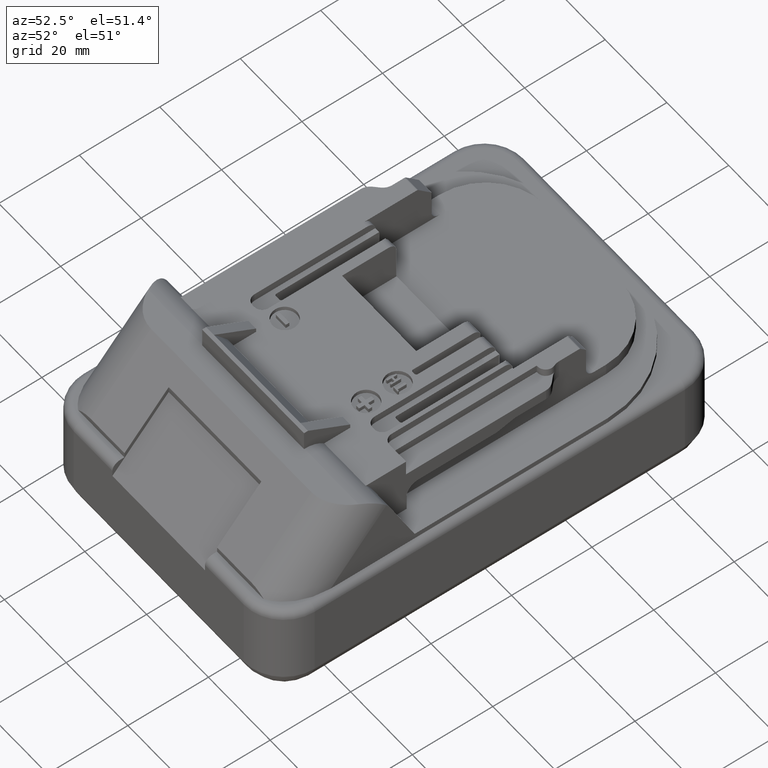
[diagram: clean part render]
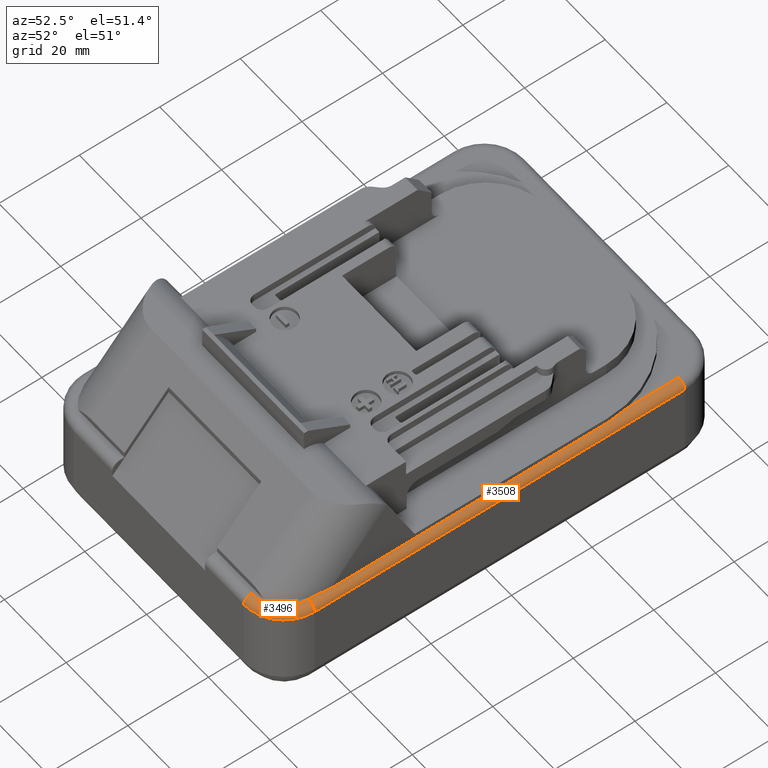
[diagram: same view with one multi-face feature highlighted, each face labeled with its STEP entity id]
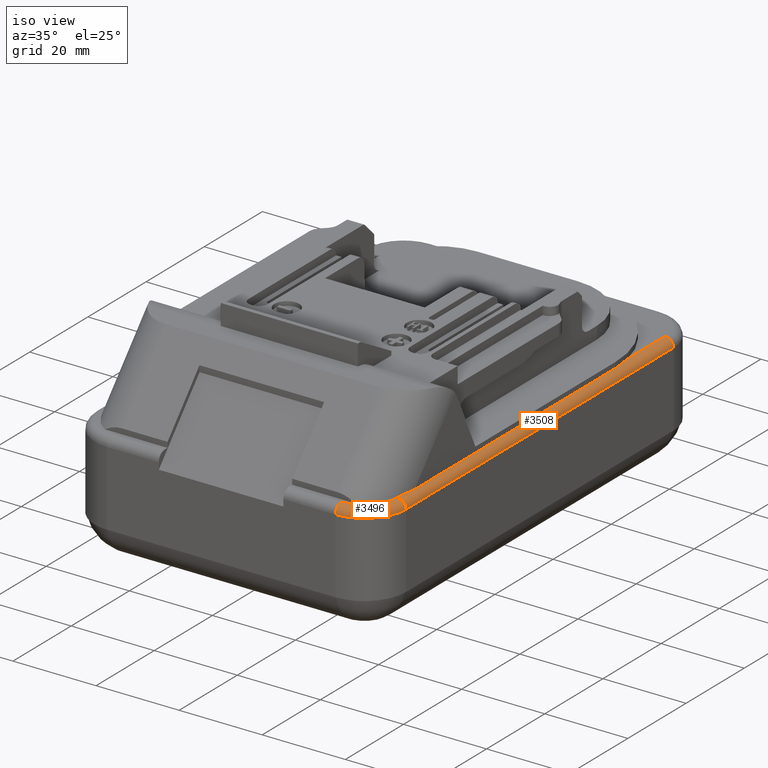
[diagram: same view with one multi-face feature highlighted, each face labeled with its STEP entity id]
A machine part, auxiliary view. The highlighted faces form ONE feature: a constant-radius fillet chain: 2 tangent blend faces with common blend radius 2 mm. The faces share edges in the B-rep.
A second angle (iso view) of the same feature is appended — it is thin or edge-on in the first view.
Their STEP definitions:
[1] entity #3508 (Cylinder):
#20=B_SPLINE_CURVE_WITH_KNOTS('',3,(#5212,#5213,#5214,#5215,#5216,#5217),
 .UNSPECIFIED.,.F.,.F.,(4,2,4),(1.13779040375782,1.49024378622264,1.60652275926252),
 .UNSPECIFIED.);
#21=B_SPLINE_CURVE_WITH_KNOTS('',3,(#5220,#5221,#5222,#5223,#5224,#5225),
 .UNSPECIFIED.,.F.,.F.,(4,2,4),(0.682096894929315,0.847989595912404,1.07007892641866),
 .UNSPECIFIED.);
#189=LINE('',#5089,#593);
#214=LINE('',#5188,#618);
#225=LINE('',#5210,#629);
#226=LINE('',#5219,#630);
#593=VECTOR('',#4064,1.);
#618=VECTOR('',#4173,1.);
#629=VECTOR('',#4192,1.);
#630=VECTOR('',#4193,1.);
#991=CYLINDRICAL_SURFACE('',#3752,2.);
#1065=FACE_OUTER_BOUND('',#1258,.T.);
#1258=EDGE_LOOP('',(#2567,#2568,#2569,#2570,#2571,#2572,#2573,#2574));
#1446=CIRCLE('',#3724,2.);
#1449=CIRCLE('',#3728,2.);
#1550=VERTEX_POINT('',#5064);
#1560=VERTEX_POINT('',#5087);
#1573=VERTEX_POINT('',#5132);
#1575=VERTEX_POINT('',#5138);
#1592=VERTEX_POINT('',#5186);
#1599=VERTEX_POINT('',#5209);
#1600=VERTEX_POINT('',#5211);
#1601=VERTEX_POINT('',#5218);
#1916=EDGE_CURVE('',#1550,#1560,#189,.T.);
#1938=EDGE_CURVE('',#1573,#1560,#1446,.T.);
#1941=EDGE_CURVE('',#1575,#1550,#1449,.T.);
#1965=EDGE_CURVE('',#1592,#1573,#214,.T.);
#1976=EDGE_CURVE('',#1575,#1599,#225,.T.);
#1977=EDGE_CURVE('',#1592,#1600,#20,.F.);
#1978=EDGE_CURVE('',#1600,#1601,#226,.F.);
#1979=EDGE_CURVE('',#1601,#1599,#21,.F.);
#2567=ORIENTED_EDGE('',*,*,#1976,.F.);
#2568=ORIENTED_EDGE('',*,*,#1941,.T.);
#2569=ORIENTED_EDGE('',*,*,#1916,.T.);
#2570=ORIENTED_EDGE('',*,*,#1938,.F.);
#2571=ORIENTED_EDGE('',*,*,#1965,.F.);
#2572=ORIENTED_EDGE('',*,*,#1977,.T.);
#2573=ORIENTED_EDGE('',*,*,#1978,.T.);
#2574=ORIENTED_EDGE('',*,*,#1979,.T.);
#3508=ADVANCED_FACE('',(#1065),#991,.T.);
#3724=AXIS2_PLACEMENT_3D('',#5133,#4112,#4113);
#3728=AXIS2_PLACEMENT_3D('',#5139,#4120,#4121);
#3752=AXIS2_PLACEMENT_3D('',#5208,#4190,#4191);
#4064=DIRECTION('',(0.,1.,0.));
#4112=DIRECTION('center_axis',(0.,1.,0.));
#4113=DIRECTION('ref_axis',(0.,0.,-1.));
#4120=DIRECTION('center_axis',(0.,1.,0.));
#4121=DIRECTION('ref_axis',(0.,0.,-1.));
#4173=DIRECTION('',(0.,1.,0.));
#4190=DIRECTION('center_axis',(0.,1.,0.));
#4191=DIRECTION('ref_axis',(-1.83697019872E-16,0.,1.));
#4192=DIRECTION('',(0.,1.,0.));
#4193=DIRECTION('',(0.,1.,5.7777284486E-10));
#5064=CARTESIAN_POINT('',(37.5,113.,26.));
#5087=CARTESIAN_POINT('',(37.5,205.,26.));
#5089=CARTESIAN_POINT('',(37.5,159.,26.));
#5132=CARTESIAN_POINT('',(35.5,205.,28.));
#5133=CARTESIAN_POINT('Origin',(35.5,205.,26.));
#5138=CARTESIAN_POINT('',(35.5,113.,28.));
#5139=CARTESIAN_POINT('Origin',(35.5,113.,26.));
#5186=CARTESIAN_POINT('',(35.5,191.9749371855,28.));
#5188=CARTESIAN_POINT('',(35.5,159.,28.));
#5208=CARTESIAN_POINT('Origin',(35.5,159.,26.));
#5209=CARTESIAN_POINT('',(35.5000002237681,114.024926793151,28.));
#5210=CARTESIAN_POINT('',(35.5,113.5124634907,28.));
#5211=CARTESIAN_POINT('',(36.,187.,27.9364916682173));
#5212=CARTESIAN_POINT('Ctrl Pts',(36.,187.,27.9364916731037));
#5213=CARTESIAN_POINT('Ctrl Pts',(36.,188.174844608216,27.9364916731037));
#5214=CARTESIAN_POINT('Ctrl Pts',(35.9116795499771,189.46048616766,27.9666188701861));
#5215=CARTESIAN_POINT('Ctrl Pts',(35.6571947176517,191.147514939608,27.9948240681797));
#5216=CARTESIAN_POINT('Ctrl Pts',(35.5833883817547,191.564275648148,27.9999999999997));
#5217=CARTESIAN_POINT('Ctrl Pts',(35.5000000000065,191.974937185501,28.));
#5218=CARTESIAN_POINT('',(36.,118.133120919714,27.9364916480988));
#5219=CARTESIAN_POINT('',(36.,152.56656045055,27.9364916428));
#5220=CARTESIAN_POINT('Ctrl Pts',(35.5000003399354,114.024926807545,28.));
#5221=CARTESIAN_POINT('Ctrl Pts',(35.6379148239494,114.584509093149,27.999999976559));
#5222=CARTESIAN_POINT('Ctrl Pts',(35.7553955137195,115.179393348443,27.9854311214674));
#5223=CARTESIAN_POINT('Ctrl Pts',(35.9505109508341,116.581493720147,27.9518928167279));
#5224=CARTESIAN_POINT('Ctrl Pts',(36.,117.392823171281,27.9364916731037));
#5225=CARTESIAN_POINT('Ctrl Pts',(36.,118.133120945407,27.9364916731037));
[2] entity #3496 (Torus):
#27=TOROIDAL_SURFACE('',#3726,8.,2.);
#1053=FACE_OUTER_BOUND('',#1246,.T.);
#1246=EDGE_LOOP('',(#2509,#2510,#2511,#2512));
#1436=CIRCLE('',#3703,10.);
#1448=CIRCLE('',#3727,2.);
#1449=CIRCLE('',#3728,2.);
#1450=CIRCLE('',#3729,8.);
#1550=VERTEX_POINT('',#5064);
#1551=VERTEX_POINT('',#5066);
#1574=VERTEX_POINT('',#5136);
#1575=VERTEX_POINT('',#5138);
#1905=EDGE_CURVE('',#1551,#1550,#1436,.T.);
#1940=EDGE_CURVE('',#1574,#1551,#1448,.F.);
#1941=EDGE_CURVE('',#1575,#1550,#1449,.T.);
#1942=EDGE_CURVE('',#1574,#1575,#1450,.T.);
#2509=ORIENTED_EDGE('',*,*,#1940,.T.);
#2510=ORIENTED_EDGE('',*,*,#1905,.T.);
#2511=ORIENTED_EDGE('',*,*,#1941,.F.);
#2512=ORIENTED_EDGE('',*,*,#1942,.F.);
#3496=ADVANCED_FACE('',(#1053),#27,.T.);
#3703=AXIS2_PLACEMENT_3D('',#5067,#4047,#4048);
#3726=AXIS2_PLACEMENT_3D('',#5135,#4116,#4117);
#3727=AXIS2_PLACEMENT_3D('',#5137,#4118,#4119);
#3728=AXIS2_PLACEMENT_3D('',#5139,#4120,#4121);
#3729=AXIS2_PLACEMENT_3D('',#5140,#4122,#4123);
#4047=DIRECTION('center_axis',(0.,0.,1.));
#4048=DIRECTION('ref_axis',(-1.,0.,0.));
#4116=DIRECTION('center_axis',(0.,0.,1.));
#4117=DIRECTION('ref_axis',(0.,-1.,0.));
#4118=DIRECTION('center_axis',(-1.,0.,0.));
#4119=DIRECTION('ref_axis',(0.,1.,0.));
#4120=DIRECTION('center_axis',(0.,1.,0.));
#4121=DIRECTION('ref_axis',(0.,0.,-1.));
#4122=DIRECTION('center_axis',(0.,0.,1.));
#4123=DIRECTION('ref_axis',(-1.,0.,0.));
#5064=CARTESIAN_POINT('',(37.5,113.,26.));
#5066=CARTESIAN_POINT('',(27.5,103.,26.));
#5067=CARTESIAN_POINT('Origin',(27.5,113.,26.));
#5135=CARTESIAN_POINT('Origin',(27.5,113.,26.));
#5136=CARTESIAN_POINT('',(27.5,105.,28.));
#5137=CARTESIAN_POINT('Origin',(27.5,105.,26.));
#5138=CARTESIAN_POINT('',(35.5,113.,28.));
#5139=CARTESIAN_POINT('Origin',(35.5,113.,26.));
#5140=CARTESIAN_POINT('Origin',(27.5,113.,28.));